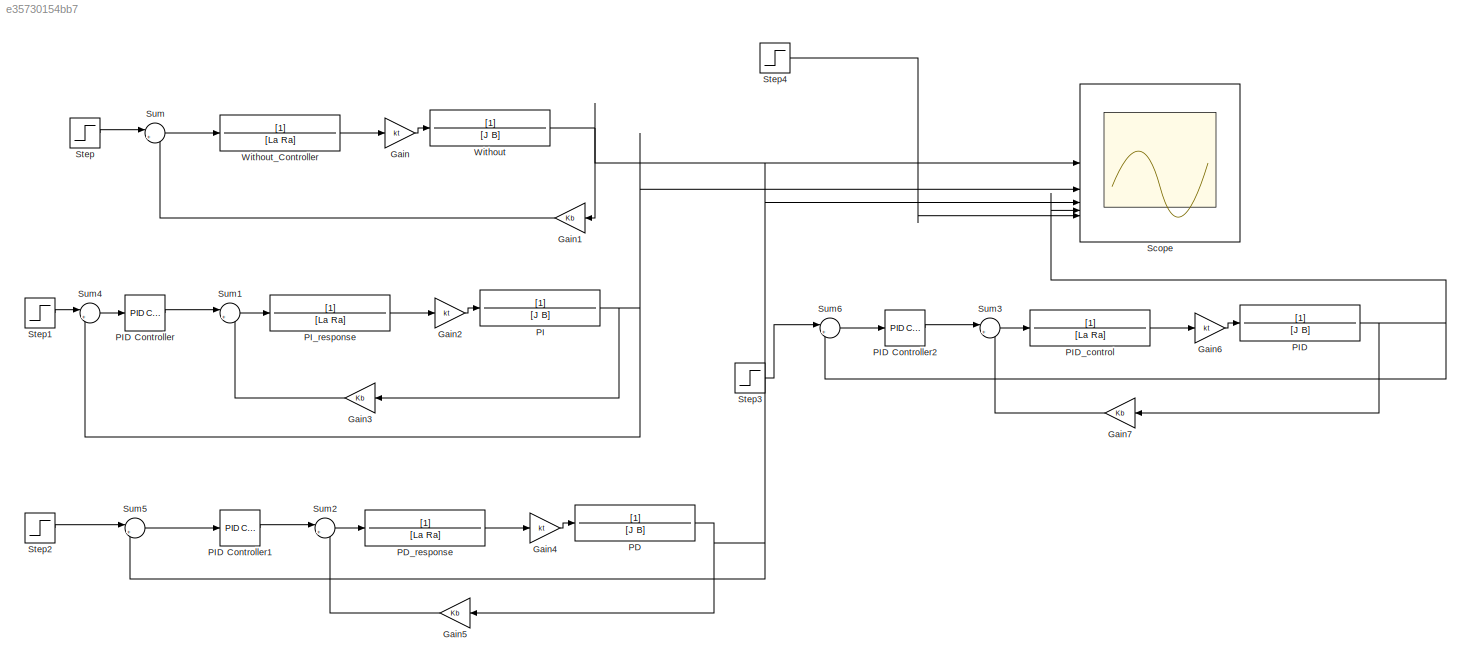
MODEL slx_e35730154bb7
KIND model
CONFIG AbsTol = auto
CONFIG EnableMultiTasking = off
CONFIG FixedStep = auto
CONFIG MaxStep = auto
CONFIG MinStep = auto
CONFIG RelTol = 1e-3
CONFIG SampleTimeConstraint = Unconstrained
CONFIG SolverName = VariableStepAuto
CONFIG StartTime = 0.0
CONFIG StopTime = 10.0
BLOCK [Gain] Gain
  Gain = kt
BLOCK [Gain] Gain1
  Gain = Kb
BLOCK [Gain] Gain2
  Gain = kt
BLOCK [Gain] Gain3
  Gain = Kb
BLOCK [Gain] Gain4
  Gain = kt
BLOCK [Gain] Gain5
  Gain = Kb
BLOCK [Gain] Gain6
  Gain = kt
BLOCK [Gain] Gain7
  Gain = Kb
BLOCK [TransferFcn] PD
  Denominator = [J B]
BLOCK [TransferFcn] PD_response
  Denominator = [La Ra]
BLOCK [TransferFcn] PI
  Denominator = [J B]
BLOCK [TransferFcn] PID
  Denominator = [J B]
BLOCK [Reference] PID Controller  REF=slpidlib/PID Controller
  LibrarySourceBlock = simulink/Continuous/PID Controller
  SourceBlock = slpidlib/PID Controller
  SourceType = PID 1dof
BLOCK [Reference] PID Controller1  REF=slpidlib/PID Controller
  LibrarySourceBlock = simulink/Continuous/PID Controller
  SourceBlock = slpidlib/PID Controller
  SourceType = PID 1dof
BLOCK [Reference] PID Controller2  REF=slpidlib/PID Controller
  LibrarySourceBlock = simulink/Continuous/PID Controller
  SourceBlock = slpidlib/PID Controller
  SourceType = PID 1dof
BLOCK [TransferFcn] PID_control
  Denominator = [La Ra]
BLOCK [TransferFcn] PI_response
  Denominator = [La Ra]
BLOCK [Scope] Scope
  Floating = off
  NumInputPorts = 5
  ScopeSpecificationString = Simulink.scopes.TimeScopeBlockCfg('CurrentConfiguration', extmgr.ConfigurationSet(extmgr.Configuration('Core','General UI',true),extmgr.Configuration('Core','Source UI',true),extmgr.Configuration('Sources','WiredSimulink',true,'DataLoggingVariableName','y','DataLogging',true,'DataLoggingSaveFormat','StructureWithTime'),extmgr.Configuration('Visuals','Time Domain',true,'SerializedDisplays',{struct(...<+1519ch>
BLOCK [Step] Step
  SampleTime = 0
BLOCK [Step] Step1
  SampleTime = 0
BLOCK [Step] Step2
  SampleTime = 0
BLOCK [Step] Step3
  SampleTime = 0
BLOCK [Step] Step4
  SampleTime = 0
BLOCK [Sum] Sum
  Inputs = |+-
BLOCK [Sum] Sum1
  Inputs = |+-
BLOCK [Sum] Sum2
  Inputs = |+-
BLOCK [Sum] Sum3
  Inputs = |+-
BLOCK [Sum] Sum4
  Inputs = |+-
BLOCK [Sum] Sum5
  Inputs = |+-
BLOCK [Sum] Sum6
  Inputs = |+-
BLOCK [TransferFcn] Without
  Denominator = [J B]
BLOCK [TransferFcn] Without_Controller
  Denominator = [La Ra]
LINE Gain1:1 -> Sum:2
LINE Gain2:1 -> PI:1
LINE Gain3:1 -> Sum1:2
LINE Gain4:1 -> PD:1
LINE Gain5:1 -> Sum2:2
LINE Gain6:1 -> PID:1
LINE Gain7:1 -> Sum3:2
LINE Gain:1 -> Without:1
NET PD:1 -> Gain5:1, Scope:3, Sum5:2
LINE PD_response:1 -> Gain4:1
NET PI:1 -> Gain3:1, Scope:2, Sum4:2
LINE PID Controller1:1 -> Sum2:1
LINE PID Controller2:1 -> Sum3:1
LINE PID Controller:1 -> Sum1:1
NET PID:1 -> Gain7:1, Scope:4, Sum6:2
LINE PID_control:1 -> Gain6:1
LINE PI_response:1 -> Gain2:1
LINE Step1:1 -> Sum4:1
LINE Step2:1 -> Sum5:1
LINE Step3:1 -> Sum6:1
LINE Step4:1 -> Scope:5
LINE Step:1 -> Sum:1
LINE Sum1:1 -> PI_response:1
LINE Sum2:1 -> PD_response:1
LINE Sum3:1 -> PID_control:1
LINE Sum4:1 -> PID Controller:1
LINE Sum5:1 -> PID Controller1:1
LINE Sum6:1 -> PID Controller2:1
LINE Sum:1 -> Without_Controller:1
NET Without:1 -> Gain1:1, Scope:1
LINE Without_Controller:1 -> Gain:1
note: NET lines group one-source signal fan-out (src -> all destinations, sorted); 1:1 wires keep LINE
